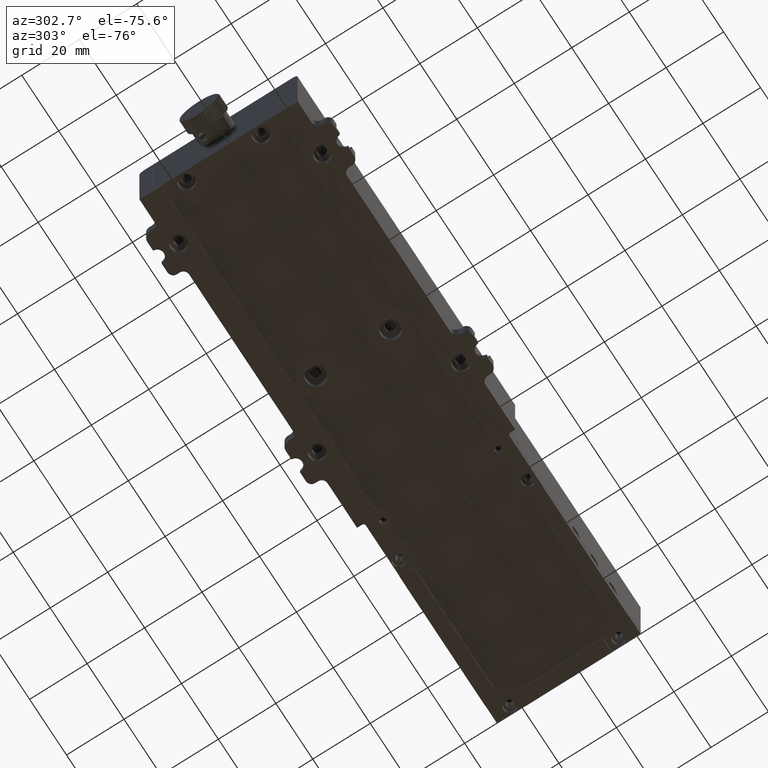
[diagram: clean part render]
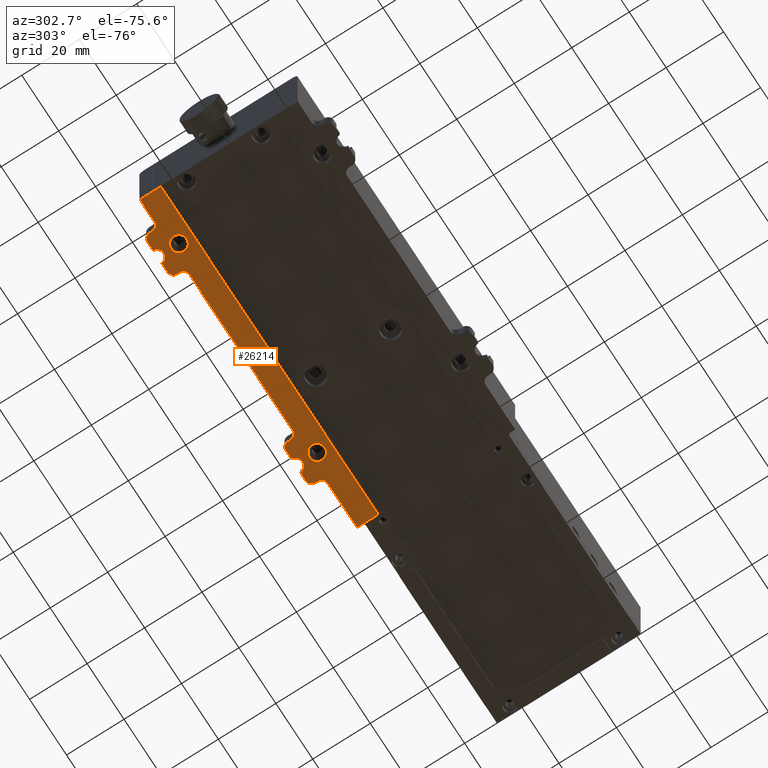
[diagram: same view with one face highlighted and labeled with its STEP entity id]
A machine part, auxiliary view. The second image highlights one B-rep face of the part: STEP entity #26214.
In plain terms, the highlighted planar face has unit normal (0, 0, 1).
Its self-contained STEP definition (entity closure, byte-faithful):
#369 = VERTEX_POINT ( 'NONE', #9660 ) ;
#907 = CARTESIAN_POINT ( 'NONE',  ( 0.6398876404494490133, 49.25842696629209883, -5.000000000000000000 ) ) ;
#1146 = CARTESIAN_POINT ( 'NONE',  ( 28.88988764044950130, 51.65842696629219688, -5.000000000000000000 ) ) ;
#1482 = DIRECTION ( 'NONE',  ( 0.000000000000000000, 0.000000000000000000, -1.000000000000000000 ) ) ;
#1852 = EDGE_CURVE ( 'NONE', #29033, #47094, #27354, .T. ) ;
#1908 = CIRCLE ( 'NONE', #10224, 2.750000000000002665 ) ;
#2235 = FACE_BOUND ( 'NONE', #61321, .T. ) ;
#2646 = LINE ( 'NONE', #22970, #44906 ) ;
#3386 = ORIENTED_EDGE ( 'NONE', *, *, #19776, .F. ) ;
#3571 = ORIENTED_EDGE ( 'NONE', *, *, #23832, .T. ) ;
#3671 = CARTESIAN_POINT ( 'NONE',  ( 8.889887640449430251, 54.75842696629209172, -5.000000000000000000 ) ) ;
#3707 = CARTESIAN_POINT ( 'NONE',  ( -66.11011235955059817, 56.65842696629220399, -5.000000000000000000 ) ) ;
#3995 = AXIS2_PLACEMENT_3D ( 'NONE', #14628, #32871, #47159 ) ;
#4199 = CIRCLE ( 'NONE', #16679, 1.900000000000000577 ) ;
#4247 = EDGE_CURVE ( 'NONE', #35965, #39074, #23836, .T. ) ;
#4341 = ORIENTED_EDGE ( 'NONE', *, *, #77489, .T. ) ;
#5045 = CARTESIAN_POINT ( 'NONE',  ( -73.95798373592529629, 56.65842696629220399, -5.000000000000000000 ) ) ;
#5518 = DIRECTION ( 'NONE',  ( 0.000000000000000000, 0.000000000000000000, -1.000000000000000000 ) ) ;
#5701 = VECTOR ( 'NONE', #43266, 1000.000000000000000 ) ;
#6749 = EDGE_CURVE ( 'NONE', #50762, #15037, #2646, .T. ) ;
#7201 = CARTESIAN_POINT ( 'NONE',  ( -62.11011235955050580, 53.75842696629209883, -5.000000000000000000 ) ) ;
#7508 = CARTESIAN_POINT ( 'NONE',  ( -4.010112359550570105, 53.75842696629209883, -5.000000000000000000 ) ) ;
#7538 = DIRECTION ( 'NONE',  ( -1.000000000000000000, 0.000000000000000000, 0.000000000000000000 ) ) ;
#7706 = VERTEX_POINT ( 'NONE', #3707 ) ;
#7792 = CARTESIAN_POINT ( 'NONE',  ( -74.36011235955051291, 49.25842696629209883, -5.000000000000000000 ) ) ;
#8445 = ORIENTED_EDGE ( 'NONE', *, *, #76481, .T. ) ;
#9301 = CARTESIAN_POINT ( 'NONE',  ( 1.042016264074685949, 56.65842696629220399, -5.000000000000000000 ) ) ;
#9444 = EDGE_LOOP ( 'NONE', ( #11144, #3386 ) ) ;
#9660 = CARTESIAN_POINT ( 'NONE',  ( -77.11011235955051291, 56.65842696629220399, -5.000000000000000000 ) ) ;
#9764 = LINE ( 'NONE', #57001, #39806 ) ;
#10224 = AXIS2_PLACEMENT_3D ( 'NONE', #66821, #14780, #47722 ) ;
#10384 = EDGE_CURVE ( 'NONE', #15037, #67466, #13138, .T. ) ;
#11005 = VERTEX_POINT ( 'NONE', #61501 ) ;
#11144 = ORIENTED_EDGE ( 'NONE', *, *, #42271, .F. ) ;
#11184 = EDGE_CURVE ( 'NONE', #83314, #36682, #23303, .T. ) ;
#11716 = AXIS2_PLACEMENT_3D ( 'NONE', #29426, #61923, #69289 ) ;
#11829 = CARTESIAN_POINT ( 'NONE',  ( -64.21011235955050722, 49.25842696629209883, -5.000000000000000000 ) ) ;
#12872 = VECTOR ( 'NONE', #24163, 1000.000000000000000 ) ;
#13108 = ORIENTED_EDGE ( 'NONE', *, *, #66719, .T. ) ;
#13138 = CIRCLE ( 'NONE', #18645, 2.099999999999999645 ) ;
#13969 = AXIS2_PLACEMENT_3D ( 'NONE', #84090, #64176, #18650 ) ;
#14148 = DIRECTION ( 'NONE',  ( 1.000000000000000000, 0.000000000000000000, 0.000000000000000000 ) ) ;
#14411 = DIRECTION ( 'NONE',  ( 0.000000000000000000, 1.000000000000000000, 0.000000000000000000 ) ) ;
#14628 = CARTESIAN_POINT ( 'NONE',  ( 12.88988764044941959, 53.75842696629209883, -5.000000000000000000 ) ) ;
#14780 = DIRECTION ( 'NONE',  ( 0.000000000000000000, 0.000000000000000000, -1.000000000000000000 ) ) ;
#14934 = CARTESIAN_POINT ( 'NONE',  ( -81.11011235955049870, 51.65842696629219688, -5.000000000000000000 ) ) ;
#15037 = VERTEX_POINT ( 'NONE', #46979 ) ;
#15628 = CARTESIAN_POINT ( 'NONE',  ( -2.110112359550554650, 54.75842696629209172, -5.000000000000000000 ) ) ;
#15816 = DIRECTION ( 'NONE',  ( 1.000000000000000000, 0.000000000000000000, 0.000000000000000000 ) ) ;
#16679 = AXIS2_PLACEMENT_3D ( 'NONE', #3671, #34934, #15816 ) ;
#16712 = CARTESIAN_POINT ( 'NONE',  ( -6.110112359550559979, 53.75842696629209883, -5.000000000000000000 ) ) ;
#16746 = EDGE_LOOP ( 'NONE', ( #56976, #44409, #71659, #70718, #64032, #69731, #61968, #46422, #23441, #31371, #32268, #76376, #38790, #75605, #83836, #49422, #73494, #8445, #4341, #41967, #3571, #13108, #20829, #74299 ) ) ;
#17295 = VERTEX_POINT ( 'NONE', #53338 ) ;
#18349 = DIRECTION ( 'NONE',  ( 0.000000000000000000, -1.000000000000000000, 0.000000000000000000 ) ) ;
#18419 = CARTESIAN_POINT ( 'NONE',  ( 10.78988764044944126, 54.75842696629209172, -5.000000000000000000 ) ) ;
#18645 = AXIS2_PLACEMENT_3D ( 'NONE', #16712, #76093, #36655 ) ;
#18650 = DIRECTION ( 'NONE',  ( 1.000000000000000000, 0.000000000000000000, 0.000000000000000000 ) ) ;
#19556 = DIRECTION ( 'NONE',  ( 1.000000000000000000, 0.000000000000000000, 0.000000000000000000 ) ) ;
#19776 = EDGE_CURVE ( 'NONE', #40493, #62932, #27520, .T. ) ;
#19787 = CARTESIAN_POINT ( 'NONE',  ( 3.389887640449449790, 49.25842696629209883, -5.000000000000000000 ) ) ;
#19993 = CARTESIAN_POINT ( 'NONE',  ( -77.11011235955051291, 54.75842696629209172, -5.000000000000000000 ) ) ;
#20178 = DIRECTION ( 'NONE',  ( 0.000000000000000000, 0.000000000000000000, 1.000000000000000000 ) ) ;
#20189 = DIRECTION ( 'NONE',  ( 0.000000000000000000, 0.000000000000000000, 1.000000000000000000 ) ) ;
#20640 = LINE ( 'NONE', #1146, #47916 ) ;
#20829 = ORIENTED_EDGE ( 'NONE', *, *, #42420, .T. ) ;
#22062 = EDGE_CURVE ( 'NONE', #37149, #83314, #9764, .T. ) ;
#22177 = DIRECTION ( 'NONE',  ( 0.000000000000000000, 0.000000000000000000, -1.000000000000000000 ) ) ;
#22602 = DIRECTION ( 'NONE',  ( -1.000000000000000000, 0.000000000000000000, 0.000000000000000000 ) ) ;
#22970 = CARTESIAN_POINT ( 'NONE',  ( -6.110112359550570638, 51.65842696629219688, -5.000000000000000000 ) ) ;
#23294 = VERTEX_POINT ( 'NONE', #58728 ) ;
#23303 = LINE ( 'NONE', #76210, #5701 ) ;
#23411 = CIRCLE ( 'NONE', #49720, 1.899999999999999023 ) ;
#23441 = ORIENTED_EDGE ( 'NONE', *, *, #30048, .T. ) ;
#23832 = EDGE_CURVE ( 'NONE', #60264, #73457, #39317, .T. ) ;
#23836 = CIRCLE ( 'NONE', #75094, 2.100000000000004530 ) ;
#24163 = DIRECTION ( 'NONE',  ( 1.000000000000000000, 0.000000000000000000, 0.000000000000000000 ) ) ;
#25563 = CIRCLE ( 'NONE', #11716, 2.349999999999999645 ) ;
#26214 = ADVANCED_FACE ( 'NONE', ( #2235, #28673, #55089 ), #81534, .F. ) ;
#26299 = DIRECTION ( 'NONE',  ( 0.000000000000000000, -1.000000000000000000, 0.000000000000000000 ) ) ;
#27354 = CIRCLE ( 'NONE', #60573, 2.750000000000002665 ) ;
#27520 = CIRCLE ( 'NONE', #31680, 2.750000000000000000 ) ;
#28673 = FACE_BOUND ( 'NONE', #9444, .T. ) ;
#28992 = VECTOR ( 'NONE', #26299, 1000.000000000000000 ) ;
#29033 = VERTEX_POINT ( 'NONE', #49357 ) ;
#29426 = CARTESIAN_POINT ( 'NONE',  ( 3.389887640449449790, 56.75842696629209883, -5.000000000000000000 ) ) ;
#30048 = EDGE_CURVE ( 'NONE', #23294, #7706, #59534, .T. ) ;
#31371 = ORIENTED_EDGE ( 'NONE', *, *, #56802, .T. ) ;
#31680 = AXIS2_PLACEMENT_3D ( 'NONE', #60410, #1482, #7538 ) ;
#32268 = ORIENTED_EDGE ( 'NONE', *, *, #41804, .T. ) ;
#32871 = DIRECTION ( 'NONE',  ( 0.000000000000000000, 0.000000000000000000, 1.000000000000000000 ) ) ;
#33034 = AXIS2_PLACEMENT_3D ( 'NONE', #19993, #33466, #59880 ) ;
#33279 = CIRCLE ( 'NONE', #80281, 2.350000000000004974 ) ;
#33466 = DIRECTION ( 'NONE',  ( 0.000000000000000000, 0.000000000000000000, -1.000000000000000000 ) ) ;
#33948 = CARTESIAN_POINT ( 'NONE',  ( -79.01011235955060386, 49.25842696629209883, -5.000000000000000000 ) ) ;
#34934 = DIRECTION ( 'NONE',  ( 0.000000000000000000, 0.000000000000000000, -1.000000000000000000 ) ) ;
#34945 = CARTESIAN_POINT ( 'NONE',  ( -71.61011235955059817, 56.75842696629209883, -5.000000000000000000 ) ) ;
#35726 = CIRCLE ( 'NONE', #50934, 2.099999999999997868 ) ;
#35965 = VERTEX_POINT ( 'NONE', #14934 ) ;
#36410 = EDGE_CURVE ( 'NONE', #36682, #37100, #62508, .T. ) ;
#36655 = DIRECTION ( 'NONE',  ( 1.000000000000000000, 0.000000000000000000, 0.000000000000000000 ) ) ;
#36682 = VERTEX_POINT ( 'NONE', #78467 ) ;
#37008 = ORIENTED_EDGE ( 'NONE', *, *, #43255, .F. ) ;
#37100 = VERTEX_POINT ( 'NONE', #61029 ) ;
#37149 = VERTEX_POINT ( 'NONE', #40660 ) ;
#37659 = ORIENTED_EDGE ( 'NONE', *, *, #1852, .F. ) ;
#38197 = CARTESIAN_POINT ( 'NONE',  ( -89.11011235955059817, 56.65842696629220399, -5.000000000000000000 ) ) ;
#38395 = VERTEX_POINT ( 'NONE', #64394 ) ;
#38543 = CARTESIAN_POINT ( 'NONE',  ( 28.78988764044945015, 44.35842696629214998, -5.000000000000000000 ) ) ;
#38790 = ORIENTED_EDGE ( 'NONE', *, *, #6749, .T. ) ;
#39074 = VERTEX_POINT ( 'NONE', #84722 ) ;
#39317 = LINE ( 'NONE', #85226, #28992 ) ;
#39806 = VECTOR ( 'NONE', #82995, 1000.000000000000000 ) ;
#40493 = VERTEX_POINT ( 'NONE', #69084 ) ;
#40549 = VECTOR ( 'NONE', #64633, 1000.000000000000000 ) ;
#40660 = CARTESIAN_POINT ( 'NONE',  ( 28.78988764044945015, 51.65842696629219688, -5.000000000000000000 ) ) ;
#41009 = DIRECTION ( 'NONE',  ( 1.000000000000000000, 0.000000000000000000, 0.000000000000000000 ) ) ;
#41743 = LINE ( 'NONE', #56418, #63302 ) ;
#41754 = LINE ( 'NONE', #81595, #43842 ) ;
#41804 = EDGE_CURVE ( 'NONE', #61956, #57408, #45204, .T. ) ;
#41967 = ORIENTED_EDGE ( 'NONE', *, *, #57777, .T. ) ;
#42070 = DIRECTION ( 'NONE',  ( 0.000000000000000000, 0.000000000000000000, -1.000000000000000000 ) ) ;
#42271 = EDGE_CURVE ( 'NONE', #62932, #40493, #53435, .T. ) ;
#42420 = EDGE_CURVE ( 'NONE', #17295, #37149, #20640, .T. ) ;
#43007 = DIRECTION ( 'NONE',  ( 1.000000000000000000, 0.000000000000000000, 0.000000000000000000 ) ) ;
#43255 = EDGE_CURVE ( 'NONE', #47094, #29033, #1908, .T. ) ;
#43266 = DIRECTION ( 'NONE',  ( -1.000000000000000000, -2.205156960987464776E-17, 0.000000000000000000 ) ) ;
#43842 = VECTOR ( 'NONE', #82026, 1000.000000000000000 ) ;
#44107 = CARTESIAN_POINT ( 'NONE',  ( -81.11011235955049870, 51.65842696629219688, -5.000000000000000000 ) ) ;
#44409 = ORIENTED_EDGE ( 'NONE', *, *, #36410, .T. ) ;
#44906 = VECTOR ( 'NONE', #68943, 1000.000000000000000 ) ;
#44959 = VECTOR ( 'NONE', #65197, 1000.000000000000000 ) ;
#45204 = LINE ( 'NONE', #11829, #49769 ) ;
#45961 = CARTESIAN_POINT ( 'NONE',  ( -89.11011235955059817, 56.65842696629220399, -5.000000000000000000 ) ) ;
#46422 = ORIENTED_EDGE ( 'NONE', *, *, #58769, .T. ) ;
#46442 = CARTESIAN_POINT ( 'NONE',  ( -4.010112359550570105, 54.75842696629209172, -5.000000000000000000 ) ) ;
#46647 = DIRECTION ( 'NONE',  ( 1.000000000000000000, 0.000000000000000000, 0.000000000000000000 ) ) ;
#46979 = CARTESIAN_POINT ( 'NONE',  ( -6.110112359550559979, 51.65842696629219688, -5.000000000000000000 ) ) ;
#47094 = VERTEX_POINT ( 'NONE', #7792 ) ;
#47159 = DIRECTION ( 'NONE',  ( 1.000000000000000000, 0.000000000000000000, 0.000000000000000000 ) ) ;
#47722 = DIRECTION ( 'NONE',  ( -1.000000000000000000, 0.000000000000000000, 0.000000000000000000 ) ) ;
#47771 = DIRECTION ( 'NONE',  ( -1.224646799147351975E-16, 1.000000000000000000, 0.000000000000000000 ) ) ;
#47855 = AXIS2_PLACEMENT_3D ( 'NONE', #19787, #5518, #64897 ) ;
#47877 = EDGE_CURVE ( 'NONE', #369, #67018, #41743, .T. ) ;
#47916 = VECTOR ( 'NONE', #41009, 1000.000000000000000 ) ;
#48362 = DIRECTION ( 'NONE',  ( 0.000000000000000000, 0.000000000000000000, -1.000000000000000000 ) ) ;
#48631 = EDGE_CURVE ( 'NONE', #57408, #50762, #35726, .T. ) ;
#49357 = CARTESIAN_POINT ( 'NONE',  ( -68.86011235955059817, 49.25842696629209883, -5.000000000000000000 ) ) ;
#49422 = ORIENTED_EDGE ( 'NONE', *, *, #64314, .T. ) ;
#49720 = AXIS2_PLACEMENT_3D ( 'NONE', #71390, #48362, #14148 ) ;
#49769 = VECTOR ( 'NONE', #18349, 1000.000000000000000 ) ;
#50762 = VERTEX_POINT ( 'NONE', #53386 ) ;
#50934 = AXIS2_PLACEMENT_3D ( 'NONE', #7201, #20178, #85633 ) ;
#51225 = DIRECTION ( 'NONE',  ( 0.000000000000000000, 0.000000000000000000, 1.000000000000000000 ) ) ;
#52878 = LINE ( 'NONE', #45961, #56137 ) ;
#53338 = CARTESIAN_POINT ( 'NONE',  ( 12.88988764044941959, 51.65842696629219688, -5.000000000000000000 ) ) ;
#53386 = CARTESIAN_POINT ( 'NONE',  ( -62.11011235955050580, 51.65842696629219688, -5.000000000000000000 ) ) ;
#53435 = CIRCLE ( 'NONE', #47855, 2.750000000000000000 ) ;
#54289 = CARTESIAN_POINT ( 'NONE',  ( -89.01011235955060386, 49.25842696629209883, -5.000000000000000000 ) ) ;
#54478 = EDGE_CURVE ( 'NONE', #67466, #59520, #41754, .T. ) ;
#55089 = FACE_OUTER_BOUND ( 'NONE', #16746, .T. ) ;
#55947 = EDGE_CURVE ( 'NONE', #38395, #369, #70390, .T. ) ;
#56137 = VECTOR ( 'NONE', #65465, 1000.000000000000000 ) ;
#56418 = CARTESIAN_POINT ( 'NONE',  ( -89.11011235955059817, 56.65842696629220399, -5.000000000000000000 ) ) ;
#56802 = EDGE_CURVE ( 'NONE', #7706, #61956, #23411, .T. ) ;
#56976 = ORIENTED_EDGE ( 'NONE', *, *, #11184, .T. ) ;
#57001 = CARTESIAN_POINT ( 'NONE',  ( 28.78988764044945015, 49.25842696629209883, -5.000000000000000000 ) ) ;
#57408 = VERTEX_POINT ( 'NONE', #82636 ) ;
#57777 = EDGE_CURVE ( 'NONE', #11005, #60264, #4199, .T. ) ;
#58162 = CARTESIAN_POINT ( 'NONE',  ( -81.11011235955049870, 53.75842696629209883, -5.000000000000000000 ) ) ;
#58728 = CARTESIAN_POINT ( 'NONE',  ( -69.26224098317578637, 56.65842696629220399, -5.000000000000000000 ) ) ;
#58769 = EDGE_CURVE ( 'NONE', #67018, #23294, #33279, .T. ) ;
#59082 = CARTESIAN_POINT ( 'NONE',  ( -2.110112359550554650, 56.65842696629220399, -5.000000000000000000 ) ) ;
#59364 = CIRCLE ( 'NONE', #3995, 2.099999999999999645 ) ;
#59520 = VERTEX_POINT ( 'NONE', #46442 ) ;
#59534 = LINE ( 'NONE', #79884, #44959 ) ;
#59880 = DIRECTION ( 'NONE',  ( 1.000000000000000000, 0.000000000000000000, 0.000000000000000000 ) ) ;
#60264 = VERTEX_POINT ( 'NONE', #18419 ) ;
#60410 = CARTESIAN_POINT ( 'NONE',  ( 3.389887640449449790, 49.25842696629209883, -5.000000000000000000 ) ) ;
#60573 = AXIS2_PLACEMENT_3D ( 'NONE', #83263, #22177, #22602 ) ;
#61029 = CARTESIAN_POINT ( 'NONE',  ( -89.01011235955060386, 51.65842696629219688, -5.000000000000000000 ) ) ;
#61321 = EDGE_LOOP ( 'NONE', ( #37008, #37659 ) ) ;
#61501 = CARTESIAN_POINT ( 'NONE',  ( 8.889887640449430251, 56.65842696629220399, -5.000000000000000000 ) ) ;
#61923 = DIRECTION ( 'NONE',  ( 0.000000000000000000, 0.000000000000000000, 1.000000000000000000 ) ) ;
#61956 = VERTEX_POINT ( 'NONE', #77864 ) ;
#61968 = ORIENTED_EDGE ( 'NONE', *, *, #47877, .T. ) ;
#62508 = LINE ( 'NONE', #54289, #64968 ) ;
#62932 = VERTEX_POINT ( 'NONE', #907 ) ;
#63302 = VECTOR ( 'NONE', #43007, 1000.000000000000000 ) ;
#64032 = ORIENTED_EDGE ( 'NONE', *, *, #81394, .T. ) ;
#64176 = DIRECTION ( 'NONE',  ( 0.000000000000000000, 0.000000000000000000, 1.000000000000000000 ) ) ;
#64314 = EDGE_CURVE ( 'NONE', #59520, #71668, #79460, .T. ) ;
#64394 = CARTESIAN_POINT ( 'NONE',  ( -79.01011235955060386, 54.75842696629209172, -5.000000000000000000 ) ) ;
#64633 = DIRECTION ( 'NONE',  ( 1.000000000000000000, 0.000000000000000000, 0.000000000000000000 ) ) ;
#64897 = DIRECTION ( 'NONE',  ( -1.000000000000000000, 0.000000000000000000, 0.000000000000000000 ) ) ;
#64968 = VECTOR ( 'NONE', #47771, 1000.000000000000000 ) ;
#65197 = DIRECTION ( 'NONE',  ( 1.000000000000000000, 0.000000000000000000, 0.000000000000000000 ) ) ;
#65465 = DIRECTION ( 'NONE',  ( 1.000000000000000000, 0.000000000000000000, 0.000000000000000000 ) ) ;
#66719 = EDGE_CURVE ( 'NONE', #73457, #17295, #59364, .T. ) ;
#66821 = CARTESIAN_POINT ( 'NONE',  ( -71.61011235955059817, 49.25842696629209883, -5.000000000000000000 ) ) ;
#67018 = VERTEX_POINT ( 'NONE', #5045 ) ;
#67466 = VERTEX_POINT ( 'NONE', #7508 ) ;
#68503 = DIRECTION ( 'NONE',  ( 1.000000000000000000, 0.000000000000000000, 0.000000000000000000 ) ) ;
#68943 = DIRECTION ( 'NONE',  ( 1.000000000000000000, 0.000000000000000000, 0.000000000000000000 ) ) ;
#69084 = CARTESIAN_POINT ( 'NONE',  ( 6.139887640449450679, 49.25842696629209883, -5.000000000000000000 ) ) ;
#69289 = DIRECTION ( 'NONE',  ( 1.000000000000000000, 0.000000000000000000, 0.000000000000000000 ) ) ;
#69731 = ORIENTED_EDGE ( 'NONE', *, *, #55947, .T. ) ;
#70390 = CIRCLE ( 'NONE', #33034, 1.899999999999999023 ) ;
#70718 = ORIENTED_EDGE ( 'NONE', *, *, #4247, .T. ) ;
#71017 = CARTESIAN_POINT ( 'NONE',  ( 5.737759016824219849, 56.65842696629220399, -5.000000000000000000 ) ) ;
#71140 = LINE ( 'NONE', #38197, #40549 ) ;
#71260 = VERTEX_POINT ( 'NONE', #71017 ) ;
#71390 = CARTESIAN_POINT ( 'NONE',  ( -66.11011235955059817, 54.75842696629209172, -5.000000000000000000 ) ) ;
#71659 = ORIENTED_EDGE ( 'NONE', *, *, #72182, .T. ) ;
#71668 = VERTEX_POINT ( 'NONE', #59082 ) ;
#72156 = EDGE_CURVE ( 'NONE', #71668, #82782, #71140, .T. ) ;
#72182 = EDGE_CURVE ( 'NONE', #37100, #35965, #82686, .T. ) ;
#73457 = VERTEX_POINT ( 'NONE', #82476 ) ;
#73494 = ORIENTED_EDGE ( 'NONE', *, *, #72156, .T. ) ;
#74299 = ORIENTED_EDGE ( 'NONE', *, *, #22062, .T. ) ;
#75094 = AXIS2_PLACEMENT_3D ( 'NONE', #58162, #51225, #19556 ) ;
#75605 = ORIENTED_EDGE ( 'NONE', *, *, #10384, .T. ) ;
#76093 = DIRECTION ( 'NONE',  ( 0.000000000000000000, 0.000000000000000000, 1.000000000000000000 ) ) ;
#76210 = CARTESIAN_POINT ( 'NONE',  ( -89.11011235955059817, 44.35842696629214998, -5.000000000000000000 ) ) ;
#76376 = ORIENTED_EDGE ( 'NONE', *, *, #48631, .T. ) ;
#76481 = EDGE_CURVE ( 'NONE', #82782, #71260, #25563, .T. ) ;
#77489 = EDGE_CURVE ( 'NONE', #71260, #11005, #52878, .T. ) ;
#77864 = CARTESIAN_POINT ( 'NONE',  ( -64.21011235955050722, 54.75842696629209172, -5.000000000000000000 ) ) ;
#78467 = CARTESIAN_POINT ( 'NONE',  ( -89.01011235955060386, 44.35842696629214998, -5.000000000000000000 ) ) ;
#79460 = CIRCLE ( 'NONE', #80810, 1.899999999999999911 ) ;
#79884 = CARTESIAN_POINT ( 'NONE',  ( -89.11011235955059817, 56.65842696629220399, -5.000000000000000000 ) ) ;
#80281 = AXIS2_PLACEMENT_3D ( 'NONE', #34945, #20189, #46647 ) ;
#80717 = LINE ( 'NONE', #33948, #85565 ) ;
#80810 = AXIS2_PLACEMENT_3D ( 'NONE', #15628, #42070, #68503 ) ;
#81394 = EDGE_CURVE ( 'NONE', #39074, #38395, #80717, .T. ) ;
#81534 = PLANE ( 'NONE',  #13969 ) ;
#81595 = CARTESIAN_POINT ( 'NONE',  ( -4.010112359550570105, 49.25842696629209883, -5.000000000000000000 ) ) ;
#82026 = DIRECTION ( 'NONE',  ( 0.000000000000000000, 1.000000000000000000, 0.000000000000000000 ) ) ;
#82476 = CARTESIAN_POINT ( 'NONE',  ( 10.78988764044944126, 53.75842696629209883, -5.000000000000000000 ) ) ;
#82636 = CARTESIAN_POINT ( 'NONE',  ( -64.21011235955050722, 53.75842696629209883, -5.000000000000000000 ) ) ;
#82686 = LINE ( 'NONE', #44107, #12872 ) ;
#82782 = VERTEX_POINT ( 'NONE', #9301 ) ;
#82995 = DIRECTION ( 'NONE',  ( 0.000000000000000000, -1.000000000000000000, 0.000000000000000000 ) ) ;
#83263 = CARTESIAN_POINT ( 'NONE',  ( -71.61011235955059817, 49.25842696629209883, -5.000000000000000000 ) ) ;
#83314 = VERTEX_POINT ( 'NONE', #38543 ) ;
#83836 = ORIENTED_EDGE ( 'NONE', *, *, #54478, .T. ) ;
#84090 = CARTESIAN_POINT ( 'NONE',  ( -89.11011235955059817, 49.25842696629209883, -5.000000000000000000 ) ) ;
#84722 = CARTESIAN_POINT ( 'NONE',  ( -79.01011235955060386, 53.75842696629209883, -5.000000000000000000 ) ) ;
#85226 = CARTESIAN_POINT ( 'NONE',  ( 10.78988764044944126, 49.25842696629209883, -5.000000000000000000 ) ) ;
#85565 = VECTOR ( 'NONE', #14411, 1000.000000000000000 ) ;
#85633 = DIRECTION ( 'NONE',  ( 1.000000000000000000, 0.000000000000000000, 0.000000000000000000 ) ) ;